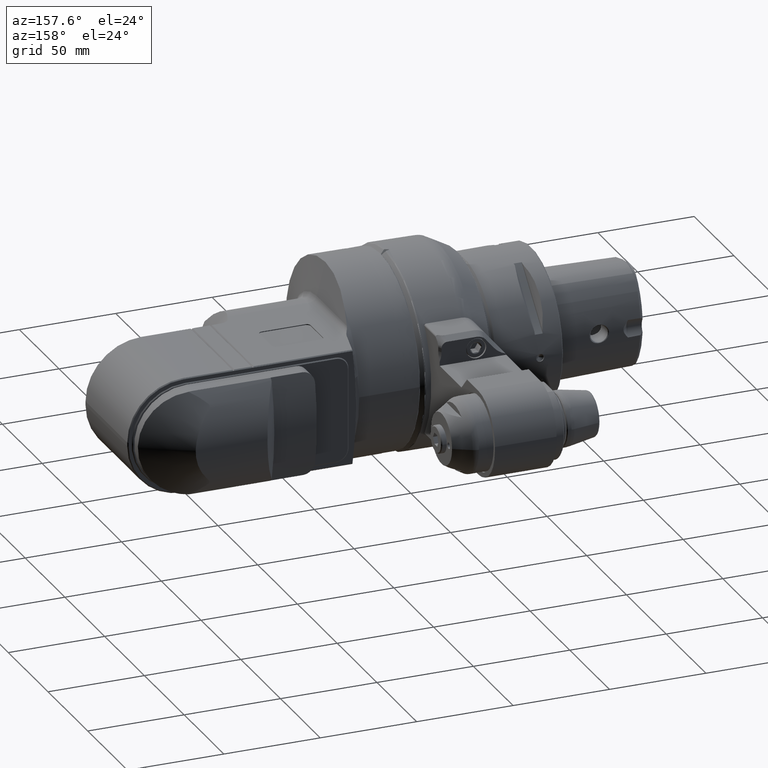
[diagram: clean part render]
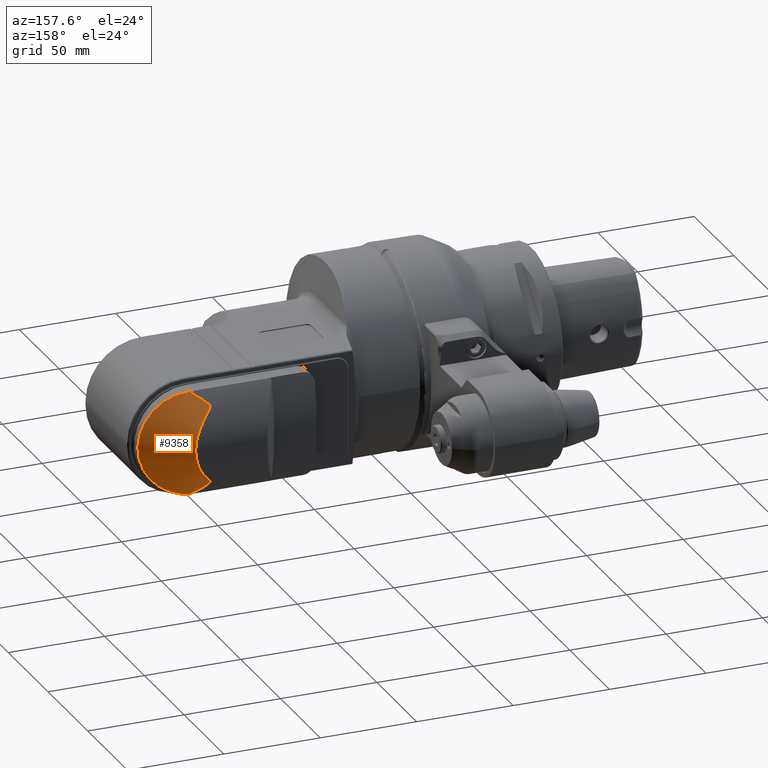
[diagram: same view with one face highlighted and labeled with its STEP entity id]
A machine part, auxiliary view. The second image highlights one B-rep face of the part: STEP entity #9358.
In plain terms, the highlighted conical surface has half-angle 60 deg.
Its self-contained STEP definition (entity closure, byte-faithful):
#132=B_SPLINE_CURVE_WITH_KNOTS('',3,(#16121,#16122,#16123,#16124,#16125,
#16126,#16127,#16128,#16129,#16130,#16131,#16132,#16133,#16134,#16135,#16136,
#16137,#16138,#16139,#16140,#16141,#16142,#16143,#16144,#16145,#16146,#16147,
#16148,#16149,#16150,#16151,#16152,#16153,#16154),.UNSPECIFIED.,.F.,.F.,
(4,2,2,2,2,2,2,2,2,2,2,2,2,2,2,2,4),(-12.0674685477416,-11.7719801831184,
-11.2574403168677,-10.7429004506171,-10.2283605843664,-9.72023521365885,
-9.21210984295131,-8.70398447224377,-8.19585910153624,-7.6877337308287,
-7.17960836012116,-6.67148298941362,-6.16335761870609,-5.64881775245541,
-5.13427788620474,-4.61973801995407,-4.32424951235205),.UNSPECIFIED.);
#135=B_SPLINE_CURVE_WITH_KNOTS('',3,(#16168,#16169,#16170,#16171,#16172,
#16173,#16174,#16175,#16176,#16177,#16178,#16179,#16180,#16181,#16182,#16183,
#16184,#16185,#16186,#16187,#16188,#16189,#16190,#16191,#16192,#16193,#16194,
#16195,#16196,#16197,#16198,#16199,#16200,#16201,#16202,#16203,#16204,#16205,
#16206,#16207,#16208,#16209,#16210,#16211,#16212,#16213,#16214,#16215,#16216,
#16217,#16218,#16219,#16220,#16221,#16222,#16223,#16224,#16225),
 .UNSPECIFIED.,.F.,.F.,(4,2,2,2,2,2,2,2,2,2,2,2,2,2,2,2,2,2,2,2,2,2,2,2,
2,2,2,2,4),(3.9431931606228,4.5236123705404,4.92438271164501,5.12476788219732,
5.22496046747347,5.27505676011154,5.32515305274962,5.36679206140051,5.40843107005141,
5.49170908735319,5.65826512195677,5.99137719116391,6.6576013295782,7.32382546799249,
7.99004960640678,8.65627374482107,9.32249788323537,9.98872202164966,10.3218340908568,
10.4883901254604,10.5716681427622,10.6133071514131,10.6549461600639,10.705042452702,
10.7551387453401,10.8553313306163,11.0557165011686,11.4564868422732,12.0369061556942),
 .UNSPECIFIED.);
#326=CONICAL_SURFACE('',#10203,22.87564434702,1.0471975511966);
#2197=FACE_OUTER_BOUND('',#2805,.T.);
#2805=EDGE_LOOP('',(#7170,#7171));
#4145=VERTEX_POINT('',#16119);
#4146=VERTEX_POINT('',#16120);
#5252=EDGE_CURVE('',#4145,#4146,#132,.F.);
#5257=EDGE_CURVE('',#4146,#4145,#135,.F.);
#7170=ORIENTED_EDGE('',*,*,#5252,.F.);
#7171=ORIENTED_EDGE('',*,*,#5257,.F.);
#9358=ADVANCED_FACE('',(#2197),#326,.T.);
#10203=AXIS2_PLACEMENT_3D('',#16167,#12030,#12031);
#12030=DIRECTION('center_axis',(0.,-1.,0.));
#12031=DIRECTION('ref_axis',(1.,0.,-1.65389215948552E-15));
#16119=CARTESIAN_POINT('',(2.18896539324615,68.5937762695566,-26.9111208743067));
#16120=CARTESIAN_POINT('',(2.18896644622182,68.5937761869924,26.911120814267));
#16121=CARTESIAN_POINT('Ctrl Pts',(2.18896617084137,68.5937763558322,26.9111208815782));
#16122=CARTESIAN_POINT('Ctrl Pts',(3.1831610613736,68.4341959497096,26.830252492923));
#16123=CARTESIAN_POINT('Ctrl Pts',(4.18755828207331,68.2752948888951,26.6928209082326));
#16124=CARTESIAN_POINT('Ctrl Pts',(6.93411863662109,67.8466884994796,26.1548954301703));
#16125=CARTESIAN_POINT('Ctrl Pts',(8.6711303162841,67.5822422853765,25.6333461145042));
#16126=CARTESIAN_POINT('Ctrl Pts',(12.0054517480497,67.0847795543394,24.2513103856349));
#16127=CARTESIAN_POINT('Ctrl Pts',(13.6053858990517,66.851318038163,23.3897242329092));
#16128=CARTESIAN_POINT('Ctrl Pts',(16.5659361410298,66.4261469582135,21.395221076354));
#16129=CARTESIAN_POINT('Ctrl Pts',(17.9264583294083,66.2344032621943,20.2621719672155));
#16130=CARTESIAN_POINT('Ctrl Pts',(20.3204200422724,65.9008778621698,17.8583834802135));
#16131=CARTESIAN_POINT('Ctrl Pts',(21.4382789736491,65.7473306558022,16.5086026362789));
#16132=CARTESIAN_POINT('Ctrl Pts',(23.4102482321784,65.4789549595162,13.5681260333779));
#16133=CARTESIAN_POINT('Ctrl Pts',(24.2644680437031,65.3640677095974,11.9775090626542));
#16134=CARTESIAN_POINT('Ctrl Pts',(25.6370342039309,65.1804621197004,8.65838378038451));
#16135=CARTESIAN_POINT('Ctrl Pts',(26.1564858972071,65.1115726403722,6.92719146202857));
#16136=CARTESIAN_POINT('Ctrl Pts',(26.8380415000532,65.0213338687702,3.44488961849861));
#16137=CARTESIAN_POINT('Ctrl Pts',(27.,65.0000000000012,1.69375123569179));
#16138=CARTESIAN_POINT('Ctrl Pts',(27.,65.0000000000012,-1.69375123569179));
#16139=CARTESIAN_POINT('Ctrl Pts',(26.8380415000532,65.0213338687702,-3.44488961849862));
#16140=CARTESIAN_POINT('Ctrl Pts',(26.1564858972071,65.1115726403722,-6.92719146202858));
#16141=CARTESIAN_POINT('Ctrl Pts',(25.6370342039309,65.1804621197004,-8.65838378038451));
#16142=CARTESIAN_POINT('Ctrl Pts',(24.2644680437031,65.3640677095974,-11.9775090626542));
#16143=CARTESIAN_POINT('Ctrl Pts',(23.4102482321784,65.4789549595162,-13.5681260333779));
#16144=CARTESIAN_POINT('Ctrl Pts',(21.4382789736491,65.7473306558022,-16.5086026362788));
#16145=CARTESIAN_POINT('Ctrl Pts',(20.3204200422724,65.9008778621698,-17.8583834802135));
#16146=CARTESIAN_POINT('Ctrl Pts',(17.9264583294083,66.2344032621943,-20.2621719672155));
#16147=CARTESIAN_POINT('Ctrl Pts',(16.5659361410298,66.4261469582135,-21.395221076354));
#16148=CARTESIAN_POINT('Ctrl Pts',(13.6053858990517,66.851318038163,-23.3897242329092));
#16149=CARTESIAN_POINT('Ctrl Pts',(12.0054517480497,67.0847795543394,-24.2513103856349));
#16150=CARTESIAN_POINT('Ctrl Pts',(8.67113031628411,67.5822422853765,-25.6333461145042));
#16151=CARTESIAN_POINT('Ctrl Pts',(6.9341186366211,67.8466884994796,-26.1548954301703));
#16152=CARTESIAN_POINT('Ctrl Pts',(4.18755779727551,68.2752949645488,-26.6928210031823));
#16153=CARTESIAN_POINT('Ctrl Pts',(3.18316008932493,68.4341961035101,-26.8302526256604));
#16154=CARTESIAN_POINT('Ctrl Pts',(2.18896472762579,68.5937765874859,-26.9111209989701));
#16167=CARTESIAN_POINT('Origin',(-8.,72.,0.));
#16168=CARTESIAN_POINT('Ctrl Pts',(2.18896612134723,68.5937770253376,-26.9111196603671));
#16169=CARTESIAN_POINT('Ctrl Pts',(0.601241772103444,69.3927859227906,-26.0324608958525));
#16170=CARTESIAN_POINT('Ctrl Pts',(-0.977971653212619,70.1890225135725,
-25.073523948554));
#16171=CARTESIAN_POINT('Ctrl Pts',(-3.36903009873962,71.4107288201491,-23.4569743766932));
#16172=CARTESIAN_POINT('Ctrl Pts',(-4.26536609910178,71.8718505644755,-22.8041542132905));
#16173=CARTESIAN_POINT('Ctrl Pts',(-5.4386314402395,72.5092437077154,-21.8466836907894));
#16174=CARTESIAN_POINT('Ctrl Pts',(-5.79636464194105,72.7085656570735,-21.5379067556193));
#16175=CARTESIAN_POINT('Ctrl Pts',(-6.28038175775617,73.0152204346236,-21.047608942736));
#16176=CARTESIAN_POINT('Ctrl Pts',(-6.43111958109392,73.1167308141114,-20.8829033984885));
#16177=CARTESIAN_POINT('Ctrl Pts',(-6.63097736176368,73.2849014561486,-20.6047871683537));
#16178=CARTESIAN_POINT('Ctrl Pts',(-6.69279960726098,73.3432935635885,-20.5074189208315));
#16179=CARTESIAN_POINT('Ctrl Pts',(-6.79462514802099,73.4724782634303,-20.2895116971906));
#16180=CARTESIAN_POINT('Ctrl Pts',(-6.83561719503478,73.5430999225755,-20.1693347223506));
#16181=CARTESIAN_POINT('Ctrl Pts',(-6.85087976173719,73.6959920913905,-19.9049579081016));
#16182=CARTESIAN_POINT('Ctrl Pts',(-6.83277876494196,73.756058429178,-19.7997167791148));
#16183=CARTESIAN_POINT('Ctrl Pts',(-6.77578231094308,73.865680486962,-19.6060374998333));
#16184=CARTESIAN_POINT('Ctrl Pts',(-6.736619471688,73.9151910412585,-19.5176525703231));
#16185=CARTESIAN_POINT('Ctrl Pts',(-6.60451574716891,74.0559993377173,-19.2643260123753));
#16186=CARTESIAN_POINT('Ctrl Pts',(-6.49825321810167,74.1390348627589,-19.1122363251122));
#16187=CARTESIAN_POINT('Ctrl Pts',(-6.15702043868674,74.3831270770857,-18.658842049325));
#16188=CARTESIAN_POINT('Ctrl Pts',(-5.90338644790978,74.5337104149135,-18.3703679377792));
#16189=CARTESIAN_POINT('Ctrl Pts',(-5.10187070674305,74.9928294030515,-17.4635335214468));
#16190=CARTESIAN_POINT('Ctrl Pts',(-4.52293526492767,75.2975542547605,-16.823802155543));
#16191=CARTESIAN_POINT('Ctrl Pts',(-2.79719533928567,76.1977376637657,-14.7830773810914));
#16192=CARTESIAN_POINT('Ctrl Pts',(-1.62347581106337,76.79195432411,-13.215230391849));
#16193=CARTESIAN_POINT('Ctrl Pts',(0.317437309418983,77.7746228311929,-9.97009390437535));
#16194=CARTESIAN_POINT('Ctrl Pts',(1.16844165177964,78.2032988141375,-8.18219983470156));
#16195=CARTESIAN_POINT('Ctrl Pts',(2.38474519616809,78.8157653037312,-4.30729599150245));
#16196=CARTESIAN_POINT('Ctrl Pts',(2.75128869403787,79.,-2.22074712804763));
#16197=CARTESIAN_POINT('Ctrl Pts',(2.75128869403787,79.,2.22074712804764));
#16198=CARTESIAN_POINT('Ctrl Pts',(2.38474519616808,78.8157653037312,4.30729599150246));
#16199=CARTESIAN_POINT('Ctrl Pts',(1.16844165177962,78.2032988141375,8.18219983470157));
#16200=CARTESIAN_POINT('Ctrl Pts',(0.317437309418963,77.7746228311929,9.97009390437535));
#16201=CARTESIAN_POINT('Ctrl Pts',(-1.6234758110634,76.79195432411,13.215230391849));
#16202=CARTESIAN_POINT('Ctrl Pts',(-2.7971953392857,76.1977376637657,14.7830773810914));
#16203=CARTESIAN_POINT('Ctrl Pts',(-4.5229352649277,75.2975542547605,16.823802155543));
#16204=CARTESIAN_POINT('Ctrl Pts',(-5.10187070674307,74.9928294030515,17.4635335214468));
#16205=CARTESIAN_POINT('Ctrl Pts',(-5.9033864479098,74.5337104149135,18.3703679377792));
#16206=CARTESIAN_POINT('Ctrl Pts',(-6.15702043868667,74.3831270770857,18.658842049325));
#16207=CARTESIAN_POINT('Ctrl Pts',(-6.49825321810163,74.1390348627589,19.1122363251122));
#16208=CARTESIAN_POINT('Ctrl Pts',(-6.6045157471686,74.0559993377172,19.2643260123755));
#16209=CARTESIAN_POINT('Ctrl Pts',(-6.73661947168773,73.9151910412584,19.5176525703232));
#16210=CARTESIAN_POINT('Ctrl Pts',(-6.77578231094303,73.865680486962,19.6060374998334));
#16211=CARTESIAN_POINT('Ctrl Pts',(-6.83277876494188,73.7560584291779,19.7997167791148));
#16212=CARTESIAN_POINT('Ctrl Pts',(-6.85087976173719,73.6959920913905,19.9049579081016));
#16213=CARTESIAN_POINT('Ctrl Pts',(-6.83561719503478,73.5430999225755,20.1693347223506));
#16214=CARTESIAN_POINT('Ctrl Pts',(-6.79462514802085,73.4724782634303,20.2895116971905));
#16215=CARTESIAN_POINT('Ctrl Pts',(-6.69279960726082,73.3432935635885,20.5074189208314));
#16216=CARTESIAN_POINT('Ctrl Pts',(-6.63097736176362,73.2849014561486,20.6047871683537));
#16217=CARTESIAN_POINT('Ctrl Pts',(-6.43111958109387,73.1167308141114,20.8829033984885));
#16218=CARTESIAN_POINT('Ctrl Pts',(-6.28038175775627,73.0152204346236,21.0476089427361));
#16219=CARTESIAN_POINT('Ctrl Pts',(-5.79636464194112,72.7085656570735,21.5379067556194));
#16220=CARTESIAN_POINT('Ctrl Pts',(-5.4386314402395,72.5092437077154,21.8466836907894));
#16221=CARTESIAN_POINT('Ctrl Pts',(-4.26536609910178,71.8718505644755,22.8041542132905));
#16222=CARTESIAN_POINT('Ctrl Pts',(-3.36903009873963,71.4107288201491,23.4569743766932));
#16223=CARTESIAN_POINT('Ctrl Pts',(-0.977971400985274,70.1890223846974,
25.0735241190801));
#16224=CARTESIAN_POINT('Ctrl Pts',(0.601242335726401,69.3927856382856,26.0324612367581));
#16225=CARTESIAN_POINT('Ctrl Pts',(2.18896697075742,68.5937765978791,26.9111201304372));